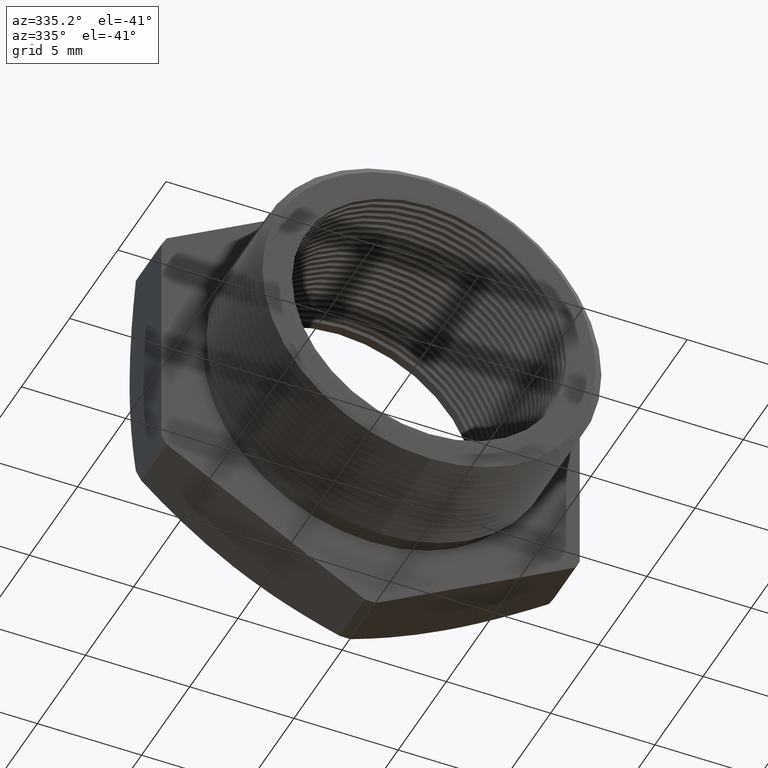
[diagram: clean part render]
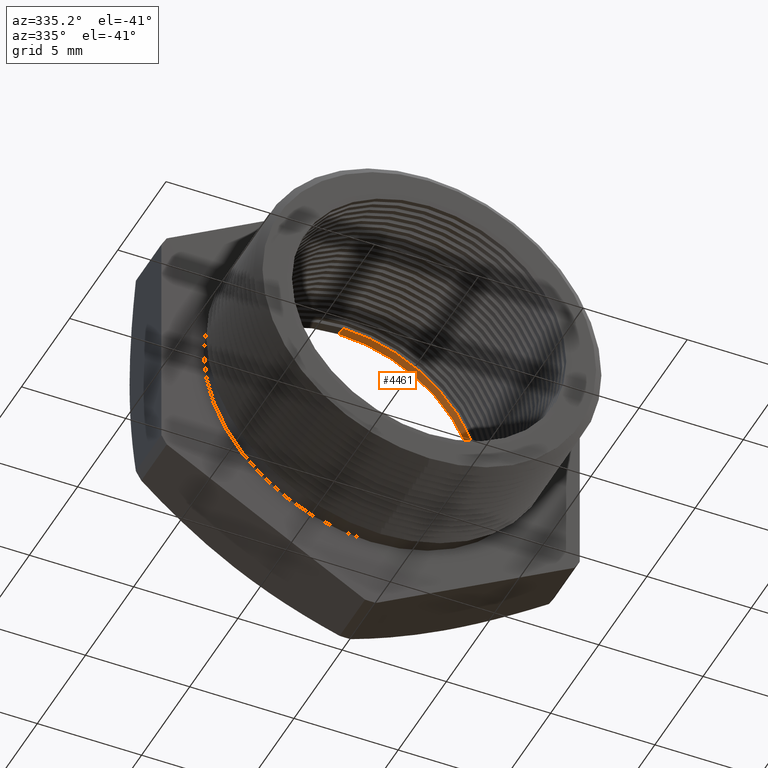
[diagram: same view with one face highlighted and labeled with its STEP entity id]
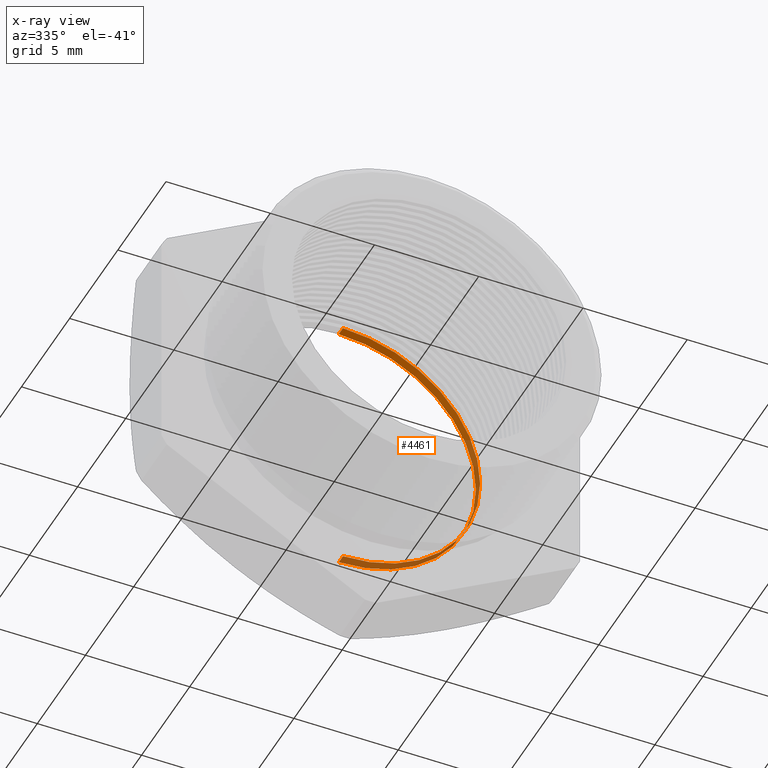
[diagram: x-ray of the same camera — body ghosted, the highlighted face saturated]
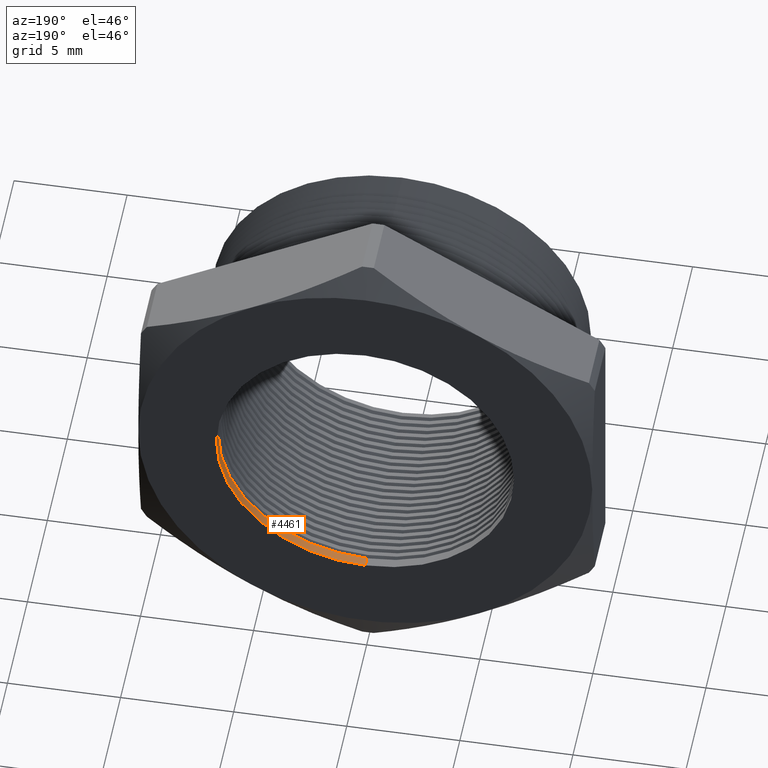
[diagram: same view with one face highlighted and labeled with its STEP entity id]
A machine part, auxiliary view. The second image highlights one B-rep face of the part: STEP entity #4461.
The next image is the same camera in x-ray: the body ghosted, the highlighted face saturated — about 45% of this face is hidden behind the body in this view.
A second angle (auxiliary view) of the same face is appended — the face is thin or edge-on in the first view.
In plain terms, the highlighted cylindrical surface (partial cylindrical patch) has radius 6.5783 mm, axis along (-0, -1, -0).
Its self-contained STEP definition (entity closure, byte-faithful):
#1274 = CARTESIAN_POINT ( 'NONE',  ( 3.171688816986526800E-017, 0.4075548905829479200, 0.2589880461203001900 ) ) ;
#1302 = DIRECTION ( 'NONE',  ( -0.0000000000000000000, -1.000000000000000000, -0.0000000000000000000 ) ) ;
#1303 = VECTOR ( 'NONE', #1302, 39.37007874015748100 ) ;
#1304 = CARTESIAN_POINT ( 'NONE',  ( 3.171688816986526800E-017, 0.0000000000000000000, 0.2589880461203001900 ) ) ;
#1305 = LINE ( 'NONE', #1304, #1303 ) ;
#1383 = DIRECTION ( 'NONE',  ( -0.0000000000000000000, -1.000000000000000000, -0.0000000000000000000 ) ) ;
#1384 = VECTOR ( 'NONE', #1383, 39.37007874015748100 ) ;
#1385 = CARTESIAN_POINT ( 'NONE',  ( 0.0000000000000000000, 0.0000000000000000000, -0.2589880461203001900 ) ) ;
#1386 = LINE ( 'NONE', #1385, #1384 ) ;
#1469 = CARTESIAN_POINT ( 'NONE',  ( 0.0000000000000000000, 0.4075548905829479200, -0.2589880461203001900 ) ) ;
#1582 = CARTESIAN_POINT ( 'NONE',  ( 3.171688816986526800E-017, 0.3903219653570460000, 0.2589880461203001900 ) ) ;
#1583 = CARTESIAN_POINT ( 'NONE',  ( 0.0000000000000000000, 0.3903219653570460000, -0.2589880461203001900 ) ) ;
#2359 = EDGE_CURVE ( 'NONE', #5888, #5790, #3649, .T. ) ;
#3645 = DIRECTION ( 'NONE',  ( 0.0000000000000000000, 0.0000000000000000000, -1.000000000000000000 ) ) ;
#3646 = DIRECTION ( 'NONE',  ( -0.0000000000000000000, -1.000000000000000000, -0.0000000000000000000 ) ) ;
#3647 = CARTESIAN_POINT ( 'NONE',  ( 0.0000000000000000000, 0.4075548905829479200, 0.0000000000000000000 ) ) ;
#3648 = AXIS2_PLACEMENT_3D ( 'NONE', #3647, #3646, #3645 ) ;
#3649 = CIRCLE ( 'NONE', #3648, 0.2589880461203001900 ) ;
#3768 = DIRECTION ( 'NONE',  ( 0.0000000000000000000, 0.0000000000000000000, -1.000000000000000000 ) ) ;
#3769 = DIRECTION ( 'NONE',  ( -0.0000000000000000000, 1.000000000000000000, -0.0000000000000000000 ) ) ;
#3770 = AXIS2_PLACEMENT_3D ( 'NONE', #3776, #3769, #3768 ) ;
#3771 = CIRCLE ( 'NONE', #3770, 0.2589880461203001900 ) ;
#3776 = CARTESIAN_POINT ( 'NONE',  ( 0.0000000000000000000, 0.3903219653570460000, 0.0000000000000000000 ) ) ;
#3866 = DIRECTION ( 'NONE',  ( 0.0000000000000000000, 0.0000000000000000000, -1.000000000000000000 ) ) ;
#3867 = DIRECTION ( 'NONE',  ( -0.0000000000000000000, -1.000000000000000000, -0.0000000000000000000 ) ) ;
#3868 = CARTESIAN_POINT ( 'NONE',  ( 0.0000000000000000000, 0.0000000000000000000, 0.0000000000000000000 ) ) ;
#3869 = AXIS2_PLACEMENT_3D ( 'NONE', #3868, #3867, #3866 ) ;
#3871 = CYLINDRICAL_SURFACE ( 'NONE', #3869, 0.2589880461203001900 ) ;
#3872 = FACE_OUTER_BOUND ( 'NONE', #4523, .T. ) ;
#4409 = EDGE_CURVE ( 'NONE', #5924, #5923, #3771, .T. ) ;
#4410 = ORIENTED_EDGE ( 'NONE', *, *, #4409, .F. ) ;
#4411 = ORIENTED_EDGE ( 'NONE', *, *, #2359, .F. ) ;
#4412 = ORIENTED_EDGE ( 'NONE', *, *, #5829, .T. ) ;
#4413 = ORIENTED_EDGE ( 'NONE', *, *, #5810, .F. ) ;
#4461 = ADVANCED_FACE ( 'NONE', ( #3872 ), #3871, .F. ) ;
#4523 = EDGE_LOOP ( 'NONE', ( #4413, #4411, #4412, #4410 ) ) ;
#5790 = VERTEX_POINT ( 'NONE', #1274 ) ;
#5810 = EDGE_CURVE ( 'NONE', #5790, #5924, #1305, .T. ) ;
#5829 = EDGE_CURVE ( 'NONE', #5888, #5923, #1386, .T. ) ;
#5888 = VERTEX_POINT ( 'NONE', #1469 ) ;
#5923 = VERTEX_POINT ( 'NONE', #1583 ) ;
#5924 = VERTEX_POINT ( 'NONE', #1582 ) ;